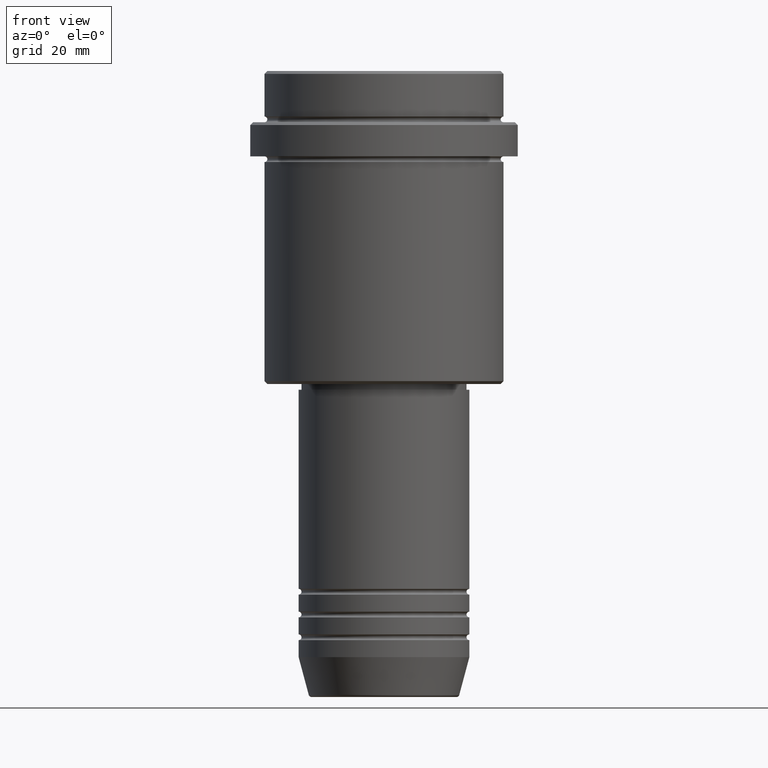
[diagram: clean part render]
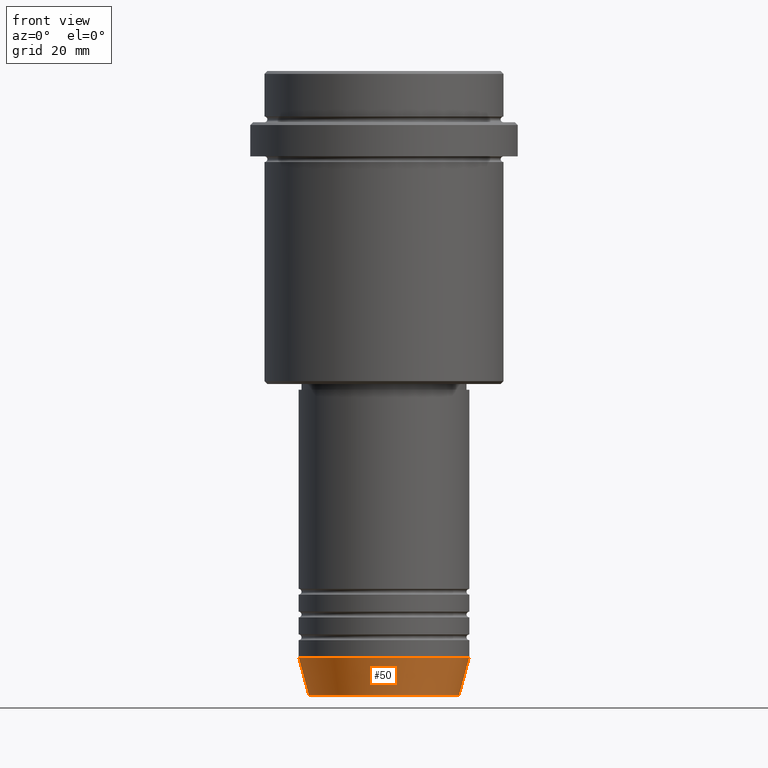
[diagram: same view with one face highlighted and labeled with its STEP entity id]
A machine part, front view. The second image highlights one B-rep face of the part: STEP entity #50.
In plain terms, the highlighted conical surface has half-angle 15 deg.
Its self-contained STEP definition (entity closure, byte-faithful):
#13 = CONICAL_SURFACE ( 'NONE', #170, 15.00000000000000000, 0.2617993877991505736 ) ;
#22 = ORIENTED_EDGE ( 'NONE', *, *, #1335, .T. ) ;
#50 = ADVANCED_FACE ( 'NONE', ( #232 ), #13, .T. ) ;
#63 = LINE ( 'NONE', #491, #680 ) ;
#92 = VERTEX_POINT ( 'NONE', #152 ) ;
#100 = ORIENTED_EDGE ( 'NONE', *, *, #331, .F. ) ;
#152 = CARTESIAN_POINT ( 'NONE',  ( -13.22365507213718949, 1.728200442216588386E-15, -109.6294095225512564 ) ) ;
#170 = AXIS2_PLACEMENT_3D ( 'NONE', #470, #1118, #256 ) ;
#189 = VERTEX_POINT ( 'NONE', #379 ) ;
#213 = EDGE_CURVE ( 'NONE', #293, #451, #1212, .T. ) ;
#232 = FACE_OUTER_BOUND ( 'NONE', #626, .T. ) ;
#256 = DIRECTION ( 'NONE',  ( 1.000000000000000000, 0.000000000000000000, 0.000000000000000000 ) ) ;
#284 = ORIENTED_EDGE ( 'NONE', *, *, #213, .F. ) ;
#293 = VERTEX_POINT ( 'NONE', #411 ) ;
#311 = CIRCLE ( 'NONE', #398, 13.22365507213718949 ) ;
#331 = EDGE_CURVE ( 'NONE', #92, #293, #747, .T. ) ;
#379 = CARTESIAN_POINT ( 'NONE',  ( 13.22365507213718949, 0.000000000000000000, -109.6294095225512564 ) ) ;
#398 = AXIS2_PLACEMENT_3D ( 'NONE', #1317, #1296, #860 ) ;
#411 = CARTESIAN_POINT ( 'NONE',  ( -15.00000000000000000, 1.836970198721029589E-15, -103.0000000000000142 ) ) ;
#451 = VERTEX_POINT ( 'NONE', #593 ) ;
#470 = CARTESIAN_POINT ( 'NONE',  ( 0.000000000000000000, 0.000000000000000000, -103.0000000000000142 ) ) ;
#491 = CARTESIAN_POINT ( 'NONE',  ( 15.00000000000000000, 0.000000000000000000, -103.0000000000000142 ) ) ;
#547 = ORIENTED_EDGE ( 'NONE', *, *, #966, .T. ) ;
#593 = CARTESIAN_POINT ( 'NONE',  ( 15.00000000000000000, 0.000000000000000000, -103.0000000000000142 ) ) ;
#595 = CARTESIAN_POINT ( 'NONE',  ( 0.000000000000000000, 0.000000000000000000, -103.0000000000000142 ) ) ;
#626 = EDGE_LOOP ( 'NONE', ( #100, #547, #22, #284 ) ) ;
#668 = DIRECTION ( 'NONE',  ( -0.2588190451025218497, 3.169619151431778500E-17, 0.9659258262890679791 ) ) ;
#680 = VECTOR ( 'NONE', #947, 1000.000000000000000 ) ;
#747 = LINE ( 'NONE', #1405, #816 ) ;
#816 = VECTOR ( 'NONE', #668, 1000.000000000000000 ) ;
#823 = DIRECTION ( 'NONE',  ( 1.000000000000000000, 0.000000000000000000, 0.000000000000000000 ) ) ;
#860 = DIRECTION ( 'NONE',  ( 1.000000000000000000, 0.000000000000000000, 0.000000000000000000 ) ) ;
#863 = AXIS2_PLACEMENT_3D ( 'NONE', #595, #935, #823 ) ;
#935 = DIRECTION ( 'NONE',  ( -0.000000000000000000, -0.000000000000000000, 1.000000000000000000 ) ) ;
#947 = DIRECTION ( 'NONE',  ( 0.2588190451025218497, 0.000000000000000000, 0.9659258262890679791 ) ) ;
#966 = EDGE_CURVE ( 'NONE', #92, #189, #311, .T. ) ;
#1118 = DIRECTION ( 'NONE',  ( -0.000000000000000000, -0.000000000000000000, 1.000000000000000000 ) ) ;
#1212 = CIRCLE ( 'NONE', #863, 15.00000000000000000 ) ;
#1296 = DIRECTION ( 'NONE',  ( -0.000000000000000000, -0.000000000000000000, 1.000000000000000000 ) ) ;
#1317 = CARTESIAN_POINT ( 'NONE',  ( 0.000000000000000000, 0.000000000000000000, -109.6294095225512564 ) ) ;
#1335 = EDGE_CURVE ( 'NONE', #189, #451, #63, .T. ) ;
#1405 = CARTESIAN_POINT ( 'NONE',  ( -15.00000000000000000, 1.836970198721029589E-15, -103.0000000000000142 ) ) ;